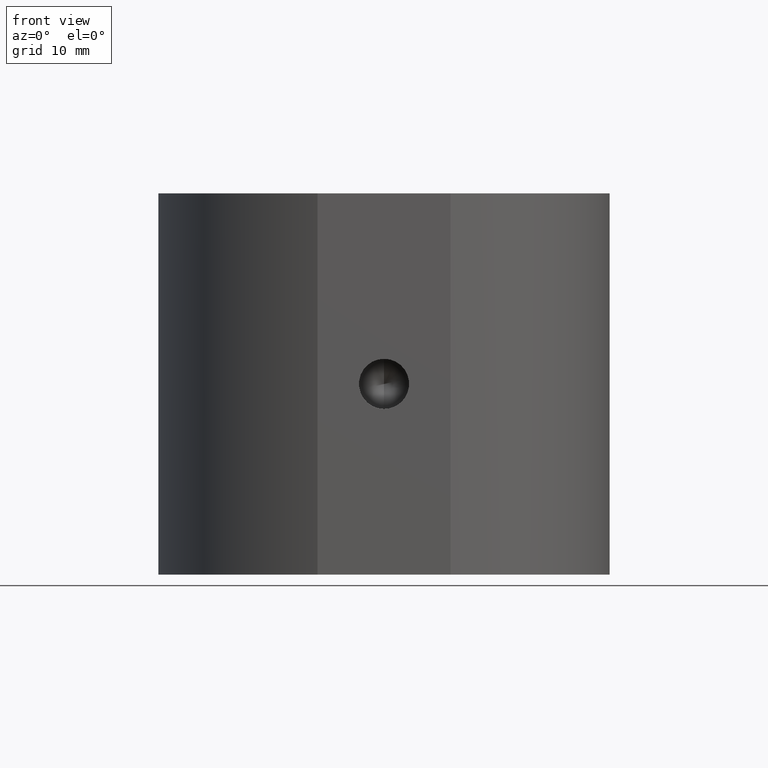
[diagram: clean part render]
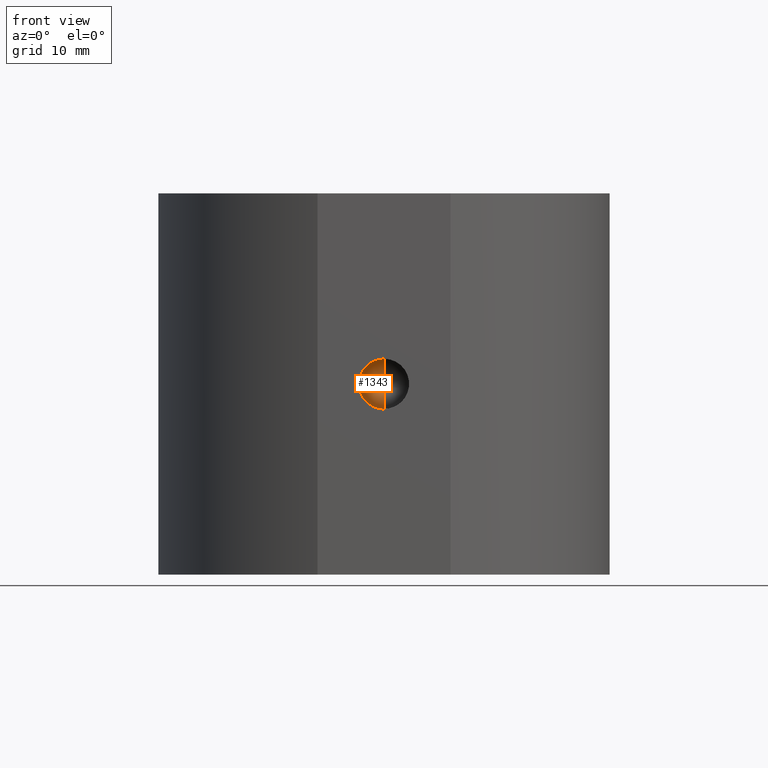
[diagram: same view with one face highlighted and labeled with its STEP entity id]
A machine part, front view. The second image highlights one B-rep face of the part: STEP entity #1343.
In plain terms, the highlighted conical surface has half-angle 59 deg.
Its self-contained STEP definition (entity closure, byte-faithful):
#2 = VECTOR ( 'NONE', #1317, 1000.000000000000000 ) ;
#29 = CIRCLE ( 'NONE', #1422, 2.499999999999997800 ) ;
#46 = ORIENTED_EDGE ( 'NONE', *, *, #1414, .T. ) ;
#191 = EDGE_CURVE ( 'NONE', #683, #784, #1093, .T. ) ;
#197 = EDGE_CURVE ( 'NONE', #1325, #784, #29, .T. ) ;
#201 = DIRECTION ( 'NONE',  ( 0.0000000000000000000, -0.5150380749100554900, -0.8571673007021115600 ) ) ;
#202 = DIRECTION ( 'NONE',  ( 0.0000000000000000000, 0.0000000000000000000, -1.000000000000000000 ) ) ;
#208 = DIRECTION ( 'NONE',  ( -0.0000000000000000000, -1.000000000000000000, -0.0000000000000000000 ) ) ;
#244 = ORIENTED_EDGE ( 'NONE', *, *, #197, .T. ) ;
#384 = LINE ( 'NONE', #1215, #2 ) ;
#459 = CARTESIAN_POINT ( 'NONE',  ( 3.489137931955432100E-015, -14.49784845243109600, 0.0000000000000000000 ) ) ;
#489 = ORIENTED_EDGE ( 'NONE', *, *, #191, .F. ) ;
#498 = VECTOR ( 'NONE', #201, 1000.000000000000000 ) ;
#543 = CONICAL_SURFACE ( 'NONE', #1211, 2.499999999999997800, 1.029744258676653000 ) ;
#641 = CARTESIAN_POINT ( 'NONE',  ( 5.204170427930421300E-015, -16.00000000000000000, 0.0000000000000000000 ) ) ;
#675 = CARTESIAN_POINT ( 'NONE',  ( 5.204170427930421300E-015, -16.00000000000000000, -2.499999999999997800 ) ) ;
#683 = VERTEX_POINT ( 'NONE', #459 ) ;
#708 = FACE_OUTER_BOUND ( 'NONE', #1009, .T. ) ;
#762 = DIRECTION ( 'NONE',  ( 0.0000000000000000000, 0.0000000000000000000, -1.000000000000000000 ) ) ;
#784 = VERTEX_POINT ( 'NONE', #675 ) ;
#1009 = EDGE_LOOP ( 'NONE', ( #489, #46, #244 ) ) ;
#1069 = CARTESIAN_POINT ( 'NONE',  ( 5.204170427930421300E-015, -16.00000000000000000, -2.499999999999997800 ) ) ;
#1093 = LINE ( 'NONE', #1069, #498 ) ;
#1180 = CARTESIAN_POINT ( 'NONE',  ( 5.204170427930421300E-015, -16.00000000000000000, 0.0000000000000000000 ) ) ;
#1211 = AXIS2_PLACEMENT_3D ( 'NONE', #641, #1281, #202 ) ;
#1215 = CARTESIAN_POINT ( 'NONE',  ( 5.510332127717259900E-015, -16.00000000000000000, 2.499999999999997800 ) ) ;
#1281 = DIRECTION ( 'NONE',  ( -0.0000000000000000000, -1.000000000000000000, -0.0000000000000000000 ) ) ;
#1317 = DIRECTION ( 'NONE',  ( 1.049727191138617700E-016, -0.5150380749100554900, 0.8571673007021115600 ) ) ;
#1325 = VERTEX_POINT ( 'NONE', #1435 ) ;
#1343 = ADVANCED_FACE ( 'NONE', ( #708 ), #543, .F. ) ;
#1414 = EDGE_CURVE ( 'NONE', #683, #1325, #384, .T. ) ;
#1422 = AXIS2_PLACEMENT_3D ( 'NONE', #1180, #208, #762 ) ;
#1435 = CARTESIAN_POINT ( 'NONE',  ( 5.510332127717259900E-015, -16.00000000000000000, 2.499999999999997800 ) ) ;